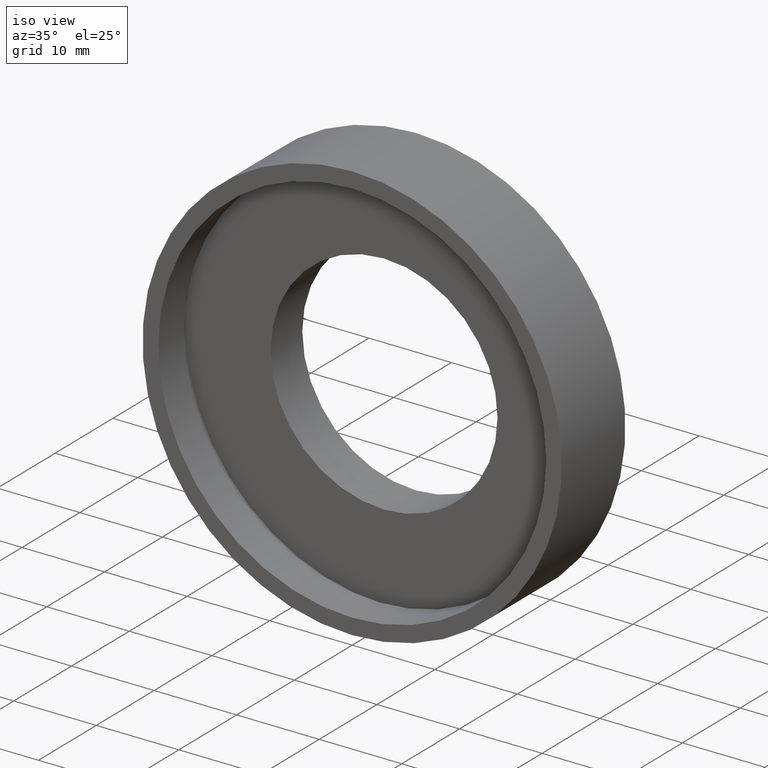
[diagram: clean part render]
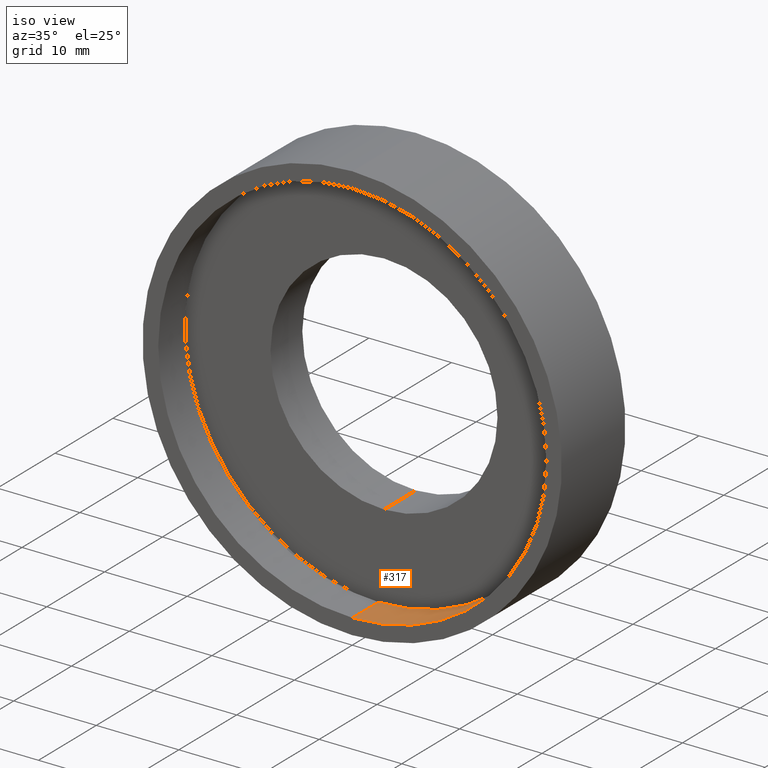
[diagram: same view with one face highlighted and labeled with its STEP entity id]
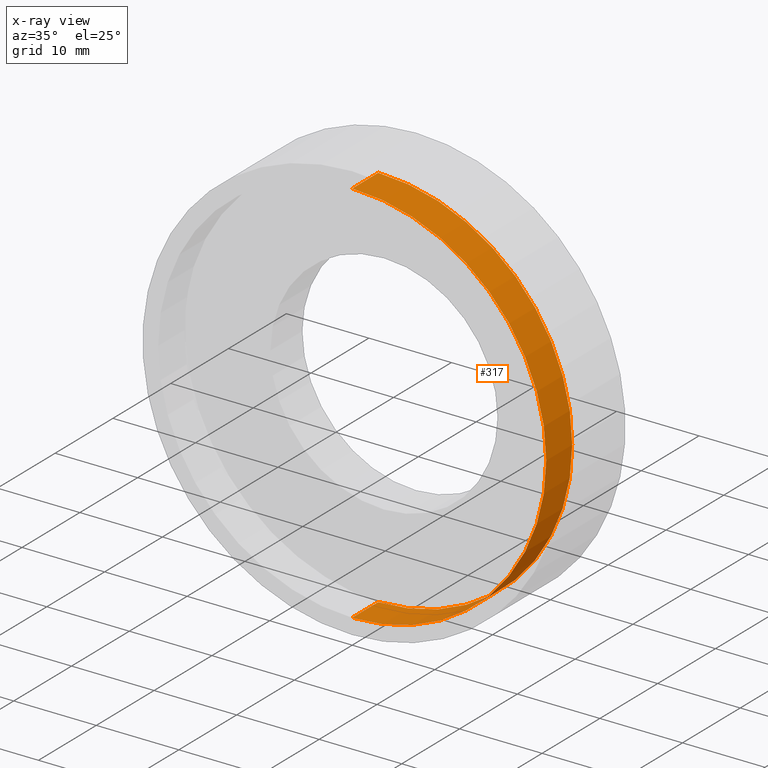
[diagram: x-ray of the same camera — body ghosted, the highlighted face saturated]
A machine part, iso view. The second image highlights one B-rep face of the part: STEP entity #317.
The next image is the same camera in x-ray: the body ghosted, the highlighted face saturated — about 0% of this face is hidden behind the body in this view.
In plain terms, the highlighted cylindrical surface (partial cylindrical patch) has radius 23.5 mm, axis along (-0, 1, -0).
Its self-contained STEP definition (entity closure, byte-faithful):
#19 = VERTEX_POINT ( 'NONE', #269 ) ;
#33 = CARTESIAN_POINT ( 'NONE',  ( 0.0000000000000000000, 60.02082041425541100, 23.50000000000000700 ) ) ;
#42 = LINE ( 'NONE', #33, #345 ) ;
#55 = LINE ( 'NONE', #311, #380 ) ;
#68 = VERTEX_POINT ( 'NONE', #93 ) ;
#90 = AXIS2_PLACEMENT_3D ( 'NONE', #420, #128, #338 ) ;
#93 = CARTESIAN_POINT ( 'NONE',  ( 2.877919977996281100E-015, 4.499999999999997300, -23.50000000000000700 ) ) ;
#110 = DIRECTION ( 'NONE',  ( -0.0000000000000000000, 1.000000000000000000, -0.0000000000000000000 ) ) ;
#128 = DIRECTION ( 'NONE',  ( -0.0000000000000000000, 1.000000000000000000, -0.0000000000000000000 ) ) ;
#181 = CIRCLE ( 'NONE', #422, 23.50000000000000700 ) ;
#192 = EDGE_CURVE ( 'NONE', #19, #329, #42, .T. ) ;
#194 = CIRCLE ( 'NONE', #90, 23.50000000000000700 ) ;
#197 = EDGE_CURVE ( 'NONE', #323, #68, #55, .T. ) ;
#200 = CYLINDRICAL_SURFACE ( 'NONE', #368, 23.50000000000000700 ) ;
#218 = CARTESIAN_POINT ( 'NONE',  ( 2.877919977996281100E-015, 0.0000000000000000000, -23.50000000000000700 ) ) ;
#223 = DIRECTION ( 'NONE',  ( 0.0000000000000000000, 0.0000000000000000000, 1.000000000000000000 ) ) ;
#234 = CARTESIAN_POINT ( 'NONE',  ( 0.0000000000000000000, 0.0000000000000000000, 0.0000000000000000000 ) ) ;
#251 = DIRECTION ( 'NONE',  ( -0.0000000000000000000, 1.000000000000000000, -0.0000000000000000000 ) ) ;
#256 = ORIENTED_EDGE ( 'NONE', *, *, #318, .F. ) ;
#265 = CARTESIAN_POINT ( 'NONE',  ( 0.0000000000000000000, 60.02082041425541100, 0.0000000000000000000 ) ) ;
#268 = CARTESIAN_POINT ( 'NONE',  ( 0.0000000000000000000, 4.499999999999997300, 23.50000000000000700 ) ) ;
#269 = CARTESIAN_POINT ( 'NONE',  ( 0.0000000000000000000, 0.0000000000000000000, 23.50000000000000700 ) ) ;
#278 = ORIENTED_EDGE ( 'NONE', *, *, #197, .F. ) ;
#281 = DIRECTION ( 'NONE',  ( -0.0000000000000000000, 1.000000000000000000, -0.0000000000000000000 ) ) ;
#288 = ORIENTED_EDGE ( 'NONE', *, *, #427, .T. ) ;
#311 = CARTESIAN_POINT ( 'NONE',  ( 2.877919977996281100E-015, 60.02082041425541100, -23.50000000000000700 ) ) ;
#317 = ADVANCED_FACE ( 'NONE', ( #330 ), #200, .F. ) ;
#318 = EDGE_CURVE ( 'NONE', #19, #323, #181, .T. ) ;
#323 = VERTEX_POINT ( 'NONE', #218 ) ;
#329 = VERTEX_POINT ( 'NONE', #268 ) ;
#330 = FACE_OUTER_BOUND ( 'NONE', #403, .T. ) ;
#332 = DIRECTION ( 'NONE',  ( 0.0000000000000000000, 0.0000000000000000000, 1.000000000000000000 ) ) ;
#337 = DIRECTION ( 'NONE',  ( -0.0000000000000000000, 1.000000000000000000, -0.0000000000000000000 ) ) ;
#338 = DIRECTION ( 'NONE',  ( 0.0000000000000000000, 0.0000000000000000000, 1.000000000000000000 ) ) ;
#345 = VECTOR ( 'NONE', #251, 1000.000000000000000 ) ;
#368 = AXIS2_PLACEMENT_3D ( 'NONE', #265, #281, #223 ) ;
#380 = VECTOR ( 'NONE', #110, 1000.000000000000000 ) ;
#398 = ORIENTED_EDGE ( 'NONE', *, *, #192, .T. ) ;
#403 = EDGE_LOOP ( 'NONE', ( #278, #256, #398, #288 ) ) ;
#420 = CARTESIAN_POINT ( 'NONE',  ( 0.0000000000000000000, 4.499999999999997300, 0.0000000000000000000 ) ) ;
#422 = AXIS2_PLACEMENT_3D ( 'NONE', #234, #337, #332 ) ;
#427 = EDGE_CURVE ( 'NONE', #329, #68, #194, .T. ) ;